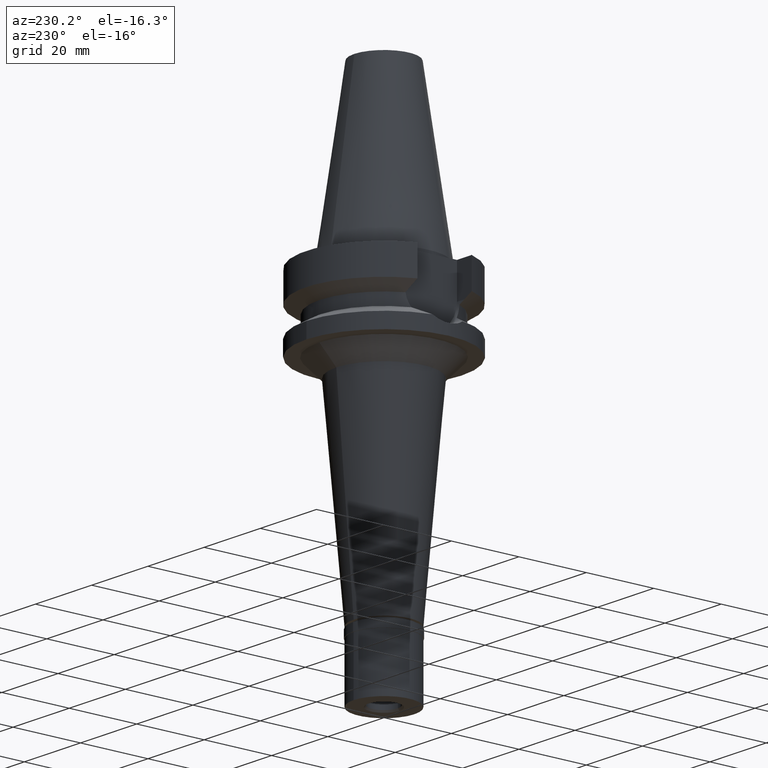
[diagram: clean part render]
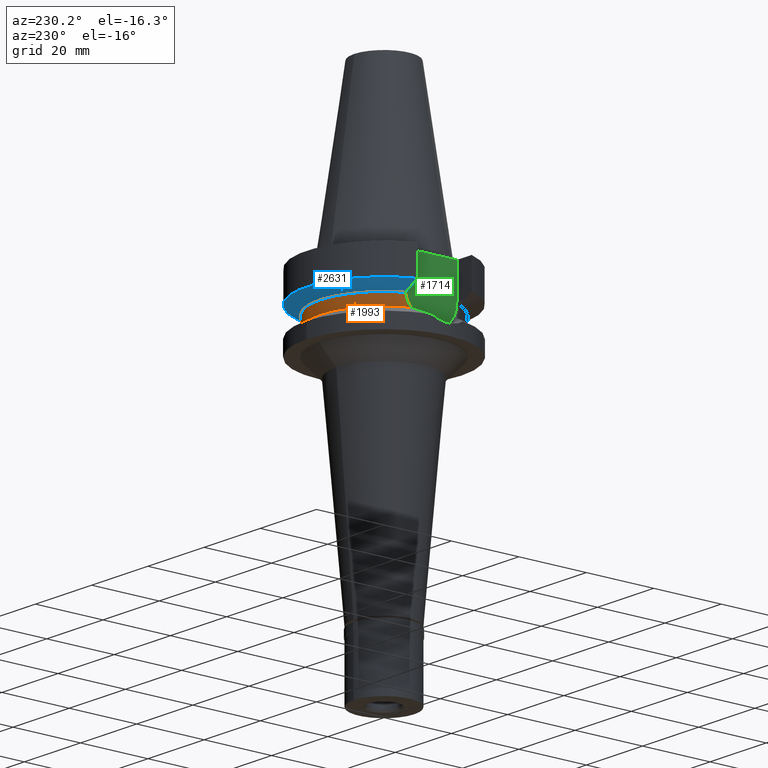
[diagram: same view with three faces highlighted in distinct colors, each labeled with its STEP entity id]
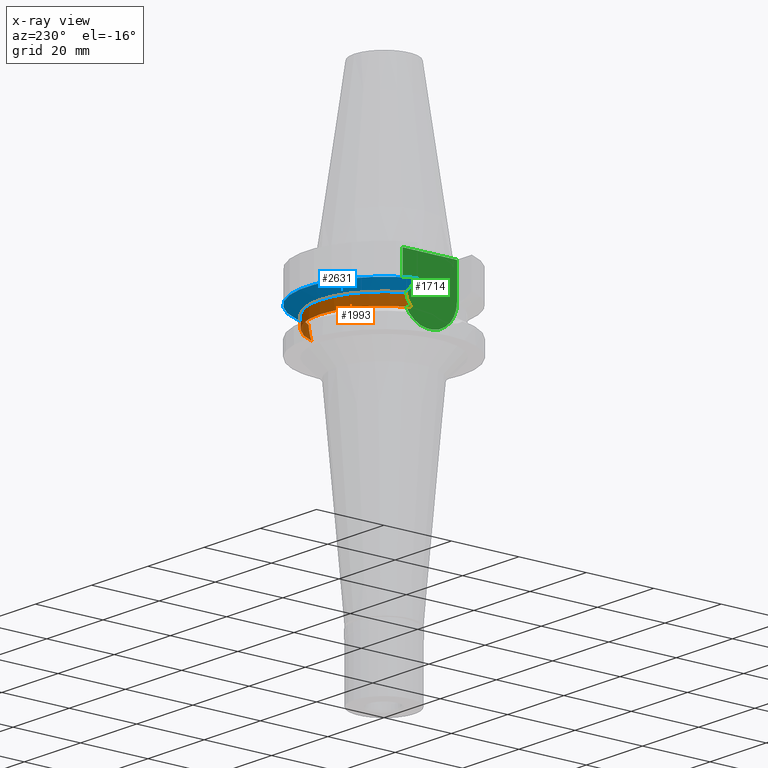
[diagram: x-ray of the same camera — body ghosted, the three highlighted faces saturated]
A machine part, auxiliary view with three faces highlighted in distinct colors.
The next image is the same camera in x-ray (body ghosted, the three faces saturated) — at least one of them is partly hidden behind the body in this view.
Their STEP definitions:

[orange] entity #1993 — the highlighted cylindrical surface (partial cylindrical patch) has radius 19 mm, axis along (0, 0, -1).
#40 = DIRECTION ( 'NONE',  ( 0.0000000000000000000, 1.000000000000000000, 0.0000000000000000000 ) ) ;
#85 = DIRECTION ( 'NONE',  ( 0.0000000000000000000, 0.0000000000000000000, 1.000000000000000000 ) ) ;
#95 = CARTESIAN_POINT ( 'NONE',  ( -17.32021102913213184, 7.811441304832540844, -12.90112611026416722 ) ) ;
#148 = DIRECTION ( 'NONE',  ( 0.0000000000000000000, 1.000000000000000000, 0.0000000000000000000 ) ) ;
#160 = CIRCLE ( 'NONE', #2420, 19.00000000000000000 ) ;
#233 = CARTESIAN_POINT ( 'NONE',  ( 17.43826181022011923, 7.543903599374800706, -13.75965695384212673 ) ) ;
#302 = CARTESIAN_POINT ( 'NONE',  ( 17.32791029655155768, 7.797415212483936209, -13.04847605244499675 ) ) ;
#322 = CARTESIAN_POINT ( 'NONE',  ( -17.41905684517208996, 7.588095152612529759, -13.63763586393635840 ) ) ;
#453 = ORIENTED_EDGE ( 'NONE', *, *, #1302, .F. ) ;
#479 = CARTESIAN_POINT ( 'NONE',  ( 17.42527193745475955, 7.573805764818990482, -13.67764394460613531 ) ) ;
#517 = DIRECTION ( 'NONE',  ( 0.0000000000000000000, 0.0000000000000000000, -1.000000000000000000 ) ) ;
#528 = CARTESIAN_POINT ( 'NONE',  ( -17.23531135306999929, 7.996501749254000480, -11.87660739350000050 ) ) ;
#542 = CARTESIAN_POINT ( 'NONE',  ( -17.27395986533189642, 7.913379086098772497, -12.45763552216297576 ) ) ;
#578 = FACE_OUTER_BOUND ( 'NONE', #1976, .T. ) ;
#586 = CARTESIAN_POINT ( 'NONE',  ( -17.41743721541741863, 7.591812942436165557, -13.62712046015920109 ) ) ;
#611 = VERTEX_POINT ( 'NONE', #1350 ) ;
#681 = CARTESIAN_POINT ( 'NONE',  ( 17.47454530892918001, 7.459745912517259825, -13.97656767980444492 ) ) ;
#745 = EDGE_CURVE ( 'NONE', #1326, #1091, #2236, .T. ) ;
#803 = CARTESIAN_POINT ( 'NONE',  ( 17.23531622903000127, 7.996491146289001151, -11.87660607780999911 ) ) ;
#851 = EDGE_CURVE ( 'NONE', #1326, #611, #2645, .T. ) ;
#922 = CARTESIAN_POINT ( 'NONE',  ( 17.42912000650152393, 7.564956682242244490, -13.70217383703447034 ) ) ;
#936 = AXIS2_PLACEMENT_3D ( 'NONE', #1638, #517, #40 ) ;
#1007 = CARTESIAN_POINT ( 'NONE',  ( -17.50090244659668315, 7.400112187079141535, -14.16657090473460023 ) ) ;
#1091 = VERTEX_POINT ( 'NONE', #1621 ) ;
#1122 = AXIS2_PLACEMENT_3D ( 'NONE', #1508, #1672, #1242 ) ;
#1197 = CARTESIAN_POINT ( 'NONE',  ( 17.75736593456000278, 6.758398853743999624, -15.32339055352999857 ) ) ;
#1202 = EDGE_CURVE ( 'NONE', #2249, #611, #160, .T. ) ;
#1242 = DIRECTION ( 'NONE',  ( 0.0000000000000000000, -1.000000000000000000, 0.0000000000000000000 ) ) ;
#1280 = CARTESIAN_POINT ( 'NONE',  ( 0.0000000000000000000, 1.022848384030000006E-14, -15.32339055352999857 ) ) ;
#1302 = EDGE_CURVE ( 'NONE', #2249, #1091, #1746, .T. ) ;
#1326 = VERTEX_POINT ( 'NONE', #528 ) ;
#1350 = CARTESIAN_POINT ( 'NONE',  ( -17.75736593456000278, 6.758398853743999624, -15.32339055352999857 ) ) ;
#1359 = ORIENTED_EDGE ( 'NONE', *, *, #1202, .T. ) ;
#1377 = CARTESIAN_POINT ( 'NONE',  ( 17.42272207960860797, 7.579666851688067197, -13.66131438036482315 ) ) ;
#1462 = CARTESIAN_POINT ( 'NONE',  ( -17.38158652104598190, 7.673693227428953101, -13.38468512422164913 ) ) ;
#1472 = CARTESIAN_POINT ( 'NONE',  ( 17.42163746040700900, 7.582158997744677720, -13.65434146900870083 ) ) ;
#1473 = CARTESIAN_POINT ( 'NONE',  ( -17.61325242202637398, 7.137050133941164276, -14.73824354991187136 ) ) ;
#1482 = CARTESIAN_POINT ( 'NONE',  ( -17.41031891391983422, 7.608134339345712149, -13.58048936670135731 ) ) ;
#1508 = CARTESIAN_POINT ( 'NONE',  ( 0.0000000000000000000, 1.908489571790999955E-14, 55.84000000000000341 ) ) ;
#1579 = CARTESIAN_POINT ( 'NONE',  ( 17.45719732142850944, 7.500152050135247883, -13.87559267603118229 ) ) ;
#1621 = CARTESIAN_POINT ( 'NONE',  ( 17.23531622903000127, 7.996491146289001151, -11.87660607780999911 ) ) ;
#1625 = CARTESIAN_POINT ( 'NONE',  ( 17.68527682800418788, 6.947809492671185083, -15.03068569917483721 ) ) ;
#1638 = CARTESIAN_POINT ( 'NONE',  ( 0.0000000000000000000, 1.093341284896999988E-14, -11.87660944646999894 ) ) ;
#1672 = DIRECTION ( 'NONE',  ( 0.0000000000000000000, 0.0000000000000000000, -1.000000000000000000 ) ) ;
#1697 = CARTESIAN_POINT ( 'NONE',  ( -17.40053163459864294, 7.630524952005876216, -13.51521058451170809 ) ) ;
#1746 = B_SPLINE_CURVE_WITH_KNOTS ( 'NONE', 3,
 ( #1197, #1625, #2738, #1873, #1848, #681, #1579, #233, #922, #479, #1377, #1472, #302, #2408, #803 ),
 .UNSPECIFIED., .F., .F.,
 ( 4, 2, 2, 1, 1, 1, 2, 2, 4 ),
 ( 0.0000000000000000000, 0.2499999999999892863, 0.3749999999999840128, 0.4374999999999812927, 0.4687499999999796829, 0.4843749999999790168, 0.4921874999999789058, 0.4999999999999787947, 1.000000000000000000 ),
 .UNSPECIFIED. ) ;
#1749 = CARTESIAN_POINT ( 'NONE',  ( -17.33754639257707453, 7.772908201136320194, -13.04962643979937376 ) ) ;
#1848 = CARTESIAN_POINT ( 'NONE',  ( 17.51073134969324840, 7.374835522467920512, -14.18047752129070638 ) ) ;
#1873 = CARTESIAN_POINT ( 'NONE',  ( 17.53684213121960767, 7.312763963996079752, -14.31903632773397383 ) ) ;
#1976 = EDGE_LOOP ( 'NONE', ( #2485, #2777, #453, #1359 ) ) ;
#1993 = ADVANCED_FACE ( 'NONE', ( #578 ), #2223, .T. ) ;
#2223 = CYLINDRICAL_SURFACE ( 'NONE', #1122, 19.00000000000000000 ) ;
#2236 = CIRCLE ( 'NONE', #936, 19.00000000000000000 ) ;
#2249 = VERTEX_POINT ( 'NONE', #2952 ) ;
#2383 = CARTESIAN_POINT ( 'NONE',  ( -17.36642690101179198, 7.707956626318810400, -13.27291044151240307 ) ) ;
#2408 = CARTESIAN_POINT ( 'NONE',  ( 17.26628387154822519, 7.929746129121769904, -12.45262345300353246 ) ) ;
#2414 = CARTESIAN_POINT ( 'NONE',  ( -17.75736593456000278, 6.758398853743999624, -15.32339055352999857 ) ) ;
#2420 = AXIS2_PLACEMENT_3D ( 'NONE', #1280, #85, #148 ) ;
#2485 = ORIENTED_EDGE ( 'NONE', *, *, #851, .F. ) ;
#2629 = CARTESIAN_POINT ( 'NONE',  ( -17.41458090274567283, 7.598364710021171753, -13.60846787542168990 ) ) ;
#2639 = CARTESIAN_POINT ( 'NONE',  ( -17.25079899151121055, 7.963111481041718953, -12.16468473482711765 ) ) ;
#2645 = B_SPLINE_CURVE_WITH_KNOTS ( 'NONE', 3,
 ( #2654, #2639, #542, #95, #1749, #2383, #1462, #1697, #1482, #2629, #586, #322, #1007, #1473, #2414 ),
 .UNSPECIFIED., .F., .F.,
 ( 4, 2, 2, 1, 1, 1, 2, 2, 4 ),
 ( 0.0000000000000000000, 0.2500000000000138778, 0.3750000000000201505, 0.4375000000000228706, 0.4687500000000242029, 0.4843750000000246470, 0.4921875000000256462, 0.5000000000000266454, 1.000000000000000000 ),
 .UNSPECIFIED. ) ;
#2654 = CARTESIAN_POINT ( 'NONE',  ( -17.23531135306999929, 7.996501749254000480, -11.87660739350000050 ) ) ;
#2738 = CARTESIAN_POINT ( 'NONE',  ( 17.62113473884960513, 7.108360423385593485, -14.74096325148224373 ) ) ;
#2777 = ORIENTED_EDGE ( 'NONE', *, *, #745, .T. ) ;
#2952 = CARTESIAN_POINT ( 'NONE',  ( 17.75736593456000278, 6.758398853743999624, -15.32339055352999857 ) ) ;

[blue] entity #2631 — the highlighted conical surface has half-angle 60 deg.
#40 = DIRECTION ( 'NONE',  ( 0.0000000000000000000, 1.000000000000000000, 0.0000000000000000000 ) ) ;
#123 = DIRECTION ( 'NONE',  ( 0.0000000000000000000, 0.0000000000000000000, 1.000000000000000000 ) ) ;
#165 = CIRCLE ( 'NONE', #596, 23.00000000000000000 ) ;
#338 = DIRECTION ( 'NONE',  ( 0.0000000000000000000, 1.000000000000000000, 0.0000000000000000000 ) ) ;
#343 = DIRECTION ( 'NONE',  ( 0.0000000000000000000, 0.0000000000000000000, 1.000000000000000000 ) ) ;
#364 = B_SPLINE_CURVE_WITH_KNOTS ( 'NONE', 3,
 ( #2118, #1155, #699, #951 ),
 .UNSPECIFIED., .F., .F.,
 ( 4, 4 ),
 ( 0.0000000000000000000, 1.000000000000000000 ),
 .UNSPECIFIED. ) ;
#483 = CARTESIAN_POINT ( 'NONE',  ( 19.78174442315476611, 8.049991903566532159, -10.51718567357101719 ) ) ;
#493 = CARTESIAN_POINT ( 'NONE',  ( 20.64098922533038660, 8.049999155432399078, -10.05625859764408148 ) ) ;
#517 = DIRECTION ( 'NONE',  ( 0.0000000000000000000, 0.0000000000000000000, -1.000000000000000000 ) ) ;
#528 = CARTESIAN_POINT ( 'NONE',  ( -17.23531135306999929, 7.996501749254000480, -11.87660739350000050 ) ) ;
#575 = B_SPLINE_CURVE_WITH_KNOTS ( 'NONE', 3,
 ( #2303, #1324, #2757, #878 ),
 .UNSPECIFIED., .F., .F.,
 ( 4, 4 ),
 ( 0.0000000000000000000, 1.000000000000000000 ),
 .UNSPECIFIED. ) ;
#596 = AXIS2_PLACEMENT_3D ( 'NONE', #2705, #343, #1248 ) ;
#635 = ORIENTED_EDGE ( 'NONE', *, *, #1876, .F. ) ;
#646 = ORIENTED_EDGE ( 'NONE', *, *, #745, .F. ) ;
#670 = VERTEX_POINT ( 'NONE', #2007 ) ;
#699 = CARTESIAN_POINT ( 'NONE',  ( -17.72682658626840180, 8.027186145711835863, -11.61172868061079555 ) ) ;
#715 = EDGE_CURVE ( 'NONE', #2513, #1326, #364, .T. ) ;
#745 = EDGE_CURVE ( 'NONE', #1326, #1091, #2236, .T. ) ;
#757 = CARTESIAN_POINT ( 'NONE',  ( 18.96738966519999892, 8.049994318180997865, -10.95000099923000114 ) ) ;
#776 = EDGE_LOOP ( 'NONE', ( #635, #2949, #1255, #646, #1095, #2430 ) ) ;
#816 = B_SPLINE_CURVE_WITH_KNOTS ( 'NONE', 3,
 ( #927, #2762, #1386, #1774 ),
 .UNSPECIFIED., .F., .F.,
 ( 4, 4 ),
 ( 0.0000000000000000000, 1.000000000000000000 ),
 .UNSPECIFIED. ) ;
#878 = CARTESIAN_POINT ( 'NONE',  ( -21.54524231187000183, 8.050002094574999489, -9.567194606463999662 ) ) ;
#927 = CARTESIAN_POINT ( 'NONE',  ( 17.23531622903000127, 7.996491146289001151, -11.87660607780999911 ) ) ;
#936 = AXIS2_PLACEMENT_3D ( 'NONE', #1638, #517, #40 ) ;
#951 = CARTESIAN_POINT ( 'NONE',  ( -17.23531135306999929, 7.996501749254000480, -11.87660739350000050 ) ) ;
#965 = CARTESIAN_POINT ( 'NONE',  ( 21.54524325238000060, 8.049999577369000292, -9.567211146607000671 ) ) ;
#1033 = VERTEX_POINT ( 'NONE', #757 ) ;
#1091 = VERTEX_POINT ( 'NONE', #1621 ) ;
#1095 = ORIENTED_EDGE ( 'NONE', *, *, #715, .F. ) ;
#1155 = CARTESIAN_POINT ( 'NONE',  ( -18.30417675764840268, 8.050000009832116277, -11.30245974892967453 ) ) ;
#1227 = CARTESIAN_POINT ( 'NONE',  ( 21.54524325238000060, 8.049999577369000292, -9.567211146607000671 ) ) ;
#1246 = EDGE_CURVE ( 'NONE', #1091, #1033, #816, .T. ) ;
#1248 = DIRECTION ( 'NONE',  ( 0.0000000000000000000, 1.000000000000000000, 0.0000000000000000000 ) ) ;
#1255 = ORIENTED_EDGE ( 'NONE', *, *, #1246, .F. ) ;
#1324 = CARTESIAN_POINT ( 'NONE',  ( -19.78176599615370179, 8.050001299688698708, -10.51717224279911456 ) ) ;
#1326 = VERTEX_POINT ( 'NONE', #528 ) ;
#1381 = EDGE_CURVE ( 'NONE', #2513, #670, #575, .T. ) ;
#1386 = CARTESIAN_POINT ( 'NONE',  ( 18.30334768621650099, 8.049999956193227391, -11.30291651442934509 ) ) ;
#1564 = VERTEX_POINT ( 'NONE', #1227 ) ;
#1604 = CARTESIAN_POINT ( 'NONE',  ( 18.96738966519999892, 8.049994318180997865, -10.95000099923000114 ) ) ;
#1621 = CARTESIAN_POINT ( 'NONE',  ( 17.23531622903000127, 7.996491146289001151, -11.87660607780999911 ) ) ;
#1638 = CARTESIAN_POINT ( 'NONE',  ( 0.0000000000000000000, 1.093341284896999988E-14, -11.87660944646999894 ) ) ;
#1641 = AXIS2_PLACEMENT_3D ( 'NONE', #1954, #123, #338 ) ;
#1687 = CONICAL_SURFACE ( 'NONE', #1641, 21.00000000000000000, 1.047197551196400456 ) ;
#1688 = CARTESIAN_POINT ( 'NONE',  ( -18.96736186721000195, 8.050001277667002242, -10.94999977543999847 ) ) ;
#1774 = CARTESIAN_POINT ( 'NONE',  ( 18.96738966519999892, 8.049994318180997865, -10.95000099923000114 ) ) ;
#1876 = EDGE_CURVE ( 'NONE', #1564, #670, #165, .T. ) ;
#1954 = CARTESIAN_POINT ( 'NONE',  ( 0.0000000000000000000, 1.093341284896999988E-14, -10.72190890808999875 ) ) ;
#2007 = CARTESIAN_POINT ( 'NONE',  ( -21.54524231187000183, 8.050002094574999489, -9.567194606463999662 ) ) ;
#2118 = CARTESIAN_POINT ( 'NONE',  ( -18.96736186721000195, 8.050001277667002242, -10.94999977543999847 ) ) ;
#2236 = CIRCLE ( 'NONE', #936, 19.00000000000000000 ) ;
#2303 = CARTESIAN_POINT ( 'NONE',  ( -18.96736186721000195, 8.050001277667002242, -10.94999977543999847 ) ) ;
#2399 = FACE_OUTER_BOUND ( 'NONE', #776, .T. ) ;
#2419 = EDGE_CURVE ( 'NONE', #1564, #1033, #2790, .T. ) ;
#2430 = ORIENTED_EDGE ( 'NONE', *, *, #1381, .T. ) ;
#2513 = VERTEX_POINT ( 'NONE', #1688 ) ;
#2631 = ADVANCED_FACE ( 'NONE', ( #2399 ), #1687, .T. ) ;
#2705 = CARTESIAN_POINT ( 'NONE',  ( 0.0000000000000000000, 1.093341284896999988E-14, -9.567208369710998639 ) ) ;
#2757 = CARTESIAN_POINT ( 'NONE',  ( -20.64102060333508604, 8.050004185841356019, -10.05624058953763544 ) ) ;
#2762 = CARTESIAN_POINT ( 'NONE',  ( 17.72598987415983274, 8.027133616520147896, -11.61218197588625500 ) ) ;
#2790 = B_SPLINE_CURVE_WITH_KNOTS ( 'NONE', 3,
 ( #965, #493, #483, #1604 ),
 .UNSPECIFIED., .F., .F.,
 ( 4, 4 ),
 ( 0.0000000000000000000, 1.000000000000000000 ),
 .UNSPECIFIED. ) ;
#2949 = ORIENTED_EDGE ( 'NONE', *, *, #2419, .T. ) ;

[green] entity #1714 — the highlighted planar face has unit normal (-1, 0, 0).
#114 = DIRECTION ( 'NONE',  ( -1.000000000000000000, 0.0000000000000000000, 0.0000000000000000000 ) ) ;
#194 = VERTEX_POINT ( 'NONE', #2258 ) ;
#246 = FACE_OUTER_BOUND ( 'NONE', #2957, .T. ) ;
#260 = DIRECTION ( 'NONE',  ( 0.0000000000000000000, 0.0000000000000000000, 1.000000000000000000 ) ) ;
#281 = CARTESIAN_POINT ( 'NONE',  ( -16.29999999999999716, 1.981478521019999946E-14, -10.94999999999999929 ) ) ;
#354 = VECTOR ( 'NONE', #260, 1000.000000000000000 ) ;
#357 = AXIS2_PLACEMENT_3D ( 'NONE', #1245, #114, #2860 ) ;
#525 = ORIENTED_EDGE ( 'NONE', *, *, #2889, .F. ) ;
#537 = ORIENTED_EDGE ( 'NONE', *, *, #1715, .F. ) ;
#556 = AXIS2_PLACEMENT_3D ( 'NONE', #281, #952, #741 ) ;
#592 = CARTESIAN_POINT ( 'NONE',  ( -16.29999999999999716, -8.050000000000000711, -1.000000000000000000 ) ) ;
#610 = DIRECTION ( 'NONE',  ( 0.0000000000000000000, 1.000000000000000000, 0.0000000000000000000 ) ) ;
#612 = ORIENTED_EDGE ( 'NONE', *, *, #1917, .T. ) ;
#714 = CARTESIAN_POINT ( 'NONE',  ( -16.29999999999999716, 8.050000000000000711, -10.94999999999999929 ) ) ;
#741 = DIRECTION ( 'NONE',  ( 0.0000000000000000000, 0.0000000000000000000, -1.000000000000000000 ) ) ;
#799 = LINE ( 'NONE', #1453, #1445 ) ;
#935 = VECTOR ( 'NONE', #610, 1000.000000000000000 ) ;
#952 = DIRECTION ( 'NONE',  ( 1.000000000000000000, 0.0000000000000000000, 0.0000000000000000000 ) ) ;
#1129 = VERTEX_POINT ( 'NONE', #2816 ) ;
#1245 = CARTESIAN_POINT ( 'NONE',  ( -16.29999999999999716, 2.249676170033999711E-14, 0.0000000000000000000 ) ) ;
#1437 = VERTEX_POINT ( 'NONE', #2595 ) ;
#1445 = VECTOR ( 'NONE', #2841, 1000.000000000000000 ) ;
#1453 = CARTESIAN_POINT ( 'NONE',  ( -16.29999999999999716, -8.050000000000000711, -1.000000000000000000 ) ) ;
#1525 = VERTEX_POINT ( 'NONE', #2486 ) ;
#1714 = ADVANCED_FACE ( 'NONE', ( #246 ), #2622, .T. ) ;
#1715 = EDGE_CURVE ( 'NONE', #194, #1525, #2061, .T. ) ;
#1917 = EDGE_CURVE ( 'NONE', #1437, #1525, #2208, .T. ) ;
#2061 = LINE ( 'NONE', #714, #354 ) ;
#2069 = EDGE_CURVE ( 'NONE', #1437, #1129, #799, .T. ) ;
#2082 = ORIENTED_EDGE ( 'NONE', *, *, #2069, .F. ) ;
#2208 = LINE ( 'NONE', #592, #935 ) ;
#2258 = CARTESIAN_POINT ( 'NONE',  ( -16.29999999999999716, 8.050000000000000711, -10.94999999999999929 ) ) ;
#2486 = CARTESIAN_POINT ( 'NONE',  ( -16.29999999999999716, 8.050000000000000711, -1.000000000000000000 ) ) ;
#2595 = CARTESIAN_POINT ( 'NONE',  ( -16.29999999999999716, -8.050000000000000711, -1.000000000000000000 ) ) ;
#2622 = PLANE ( 'NONE',  #357 ) ;
#2816 = CARTESIAN_POINT ( 'NONE',  ( -16.29999999999999716, -8.050000000000000711, -10.94999999999999929 ) ) ;
#2841 = DIRECTION ( 'NONE',  ( 0.0000000000000000000, 0.0000000000000000000, -1.000000000000000000 ) ) ;
#2860 = DIRECTION ( 'NONE',  ( 0.0000000000000000000, 0.0000000000000000000, 1.000000000000000000 ) ) ;
#2889 = EDGE_CURVE ( 'NONE', #1129, #194, #2954, .T. ) ;
#2954 = CIRCLE ( 'NONE', #556, 8.050000000000000711 ) ;
#2957 = EDGE_LOOP ( 'NONE', ( #537, #525, #2082, #612 ) ) ;